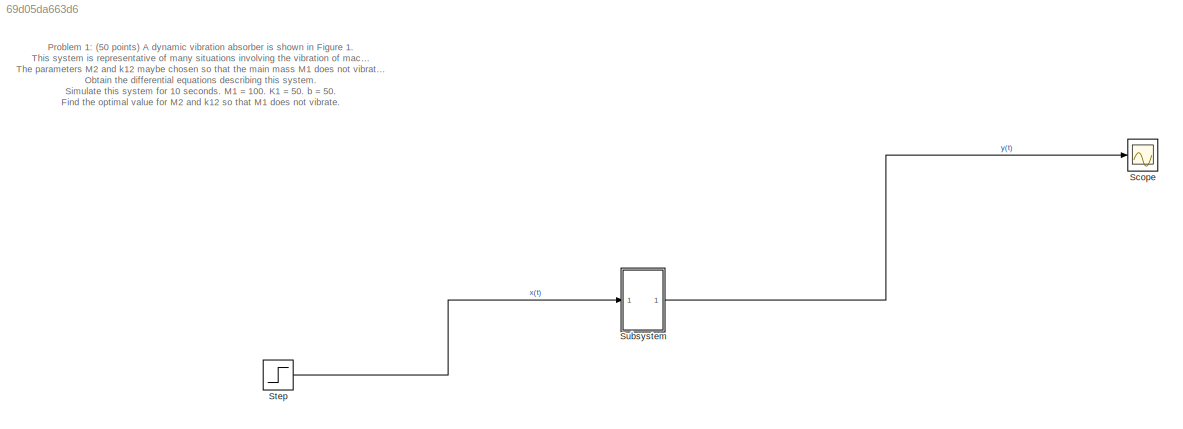
MODEL slx_69d05da663d6
KIND model
CONFIG AbsTol = auto
CONFIG EnableMultiTasking = off
CONFIG FixedStep = auto
CONFIG MaxStep = auto
CONFIG MinStep = auto
CONFIG RelTol = 1e-3
CONFIG SampleTimeConstraint = Unconstrained
CONFIG Solver = VariableStepAuto
CONFIG SolverName = VariableStepAuto
CONFIG StartTime = 0.0
CONFIG StopTime = 10.0
WORKSPACE source: mxarray member
WORKSPACE K: Simulink.Parameter (value not decoded)
WORKSPACE K12: Simulink.Parameter (value not decoded)
WORKSPACE M2: Simulink.Parameter (value not decoded)
WORKSPACE Param: Simulink.Parameter (value not decoded)
WORKSPACE b: Simulink.Parameter (value not decoded)
BLOCK [Scope] Scope
  Floating = off
  NumInputPorts = 1
  Ports = [1]
  ScopeSpecificationString = Simulink.scopes.TimeScopeBlockCfg('CurrentConfiguration', extmgr.ConfigurationSet(extmgr.Configuration('Core','General UI',true,'DisplayFullSourceName',true),extmgr.Configuration('Core','Source UI',true),extmgr.Configuration('Sources','WiredSimulink',true),extmgr.Configuration('Visuals','Time Domain',true,'SerializedDisplays',{struct('MinYLimReal','-275809.21973','MaxYLimReal','2483282.97754','YLa...<+1468ch>
BLOCK [Step] Step
  After = 100
  Before = 0.01
  SampleTime = 0
  Time = 1000
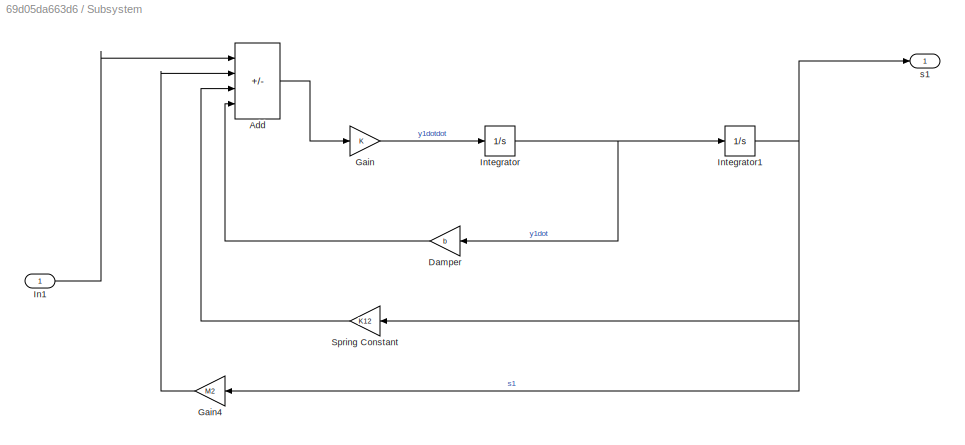
BLOCK [SubSystem] Subsystem
  Ports = [1, 1]
  RequestExecContextInheritance = off
  TreatAsAtomicUnit = on
BLOCK [Sum] Subsystem/Add
  IconShape = rectangular
  Inputs = ++--
  Ports = [4, 1]
BLOCK [Gain] Subsystem/Damper
  Gain = b
  NameLocation = top
BLOCK [Gain] Subsystem/Gain
  Gain = K
BLOCK [Gain] Subsystem/Gain4
  Gain = M2
  NameLocation = top
BLOCK [Inport] Subsystem/In1
BLOCK [Integrator] Subsystem/Integrator
  InitialCondition = 5
  Ports = [1, 1]
BLOCK [Integrator] Subsystem/Integrator1
  InitialCondition = 100
  Ports = [1, 1]
BLOCK [Gain] Subsystem/Spring Constant
  Gain = K12
  NameLocation = top
BLOCK [Outport] Subsystem/s1
ANNOTATION (root): Problem 1: (50 points) A dynamic vibration absorber is shown in Figure 1. This system is representative of many situations involving the vibration of machines containing unbalanced components. The parameters M2 and k12 maybe chosen so that the main mass M1 does not vibrate in the steady state when F(t) = 2 * sin (10 * t) Obtain the differential equations describing this system. Simulate this syste...<+111ch>
LINE Step:1 -> Subsystem:1
LINE Subsystem/Add:1 -> Subsystem/Gain:1
LINE Subsystem/Damper:1 -> Subsystem/Add:4
LINE Subsystem/Gain4:1 -> Subsystem/Add:2
LINE Subsystem/Gain:1 -> Subsystem/Integrator:1
LINE Subsystem/In1:1 -> Subsystem/Add:1
NET Subsystem/Integrator1:1 -> Subsystem/Gain4:1, Subsystem/Spring Constant:1, Subsystem/s1:1
NET Subsystem/Integrator:1 -> Subsystem/Damper:1, Subsystem/Integrator1:1
LINE Subsystem/Spring Constant:1 -> Subsystem/Add:3
LINE Subsystem:1 -> Scope:1
note: NET lines group one-source signal fan-out (src -> all destinations, sorted); 1:1 wires keep LINE
